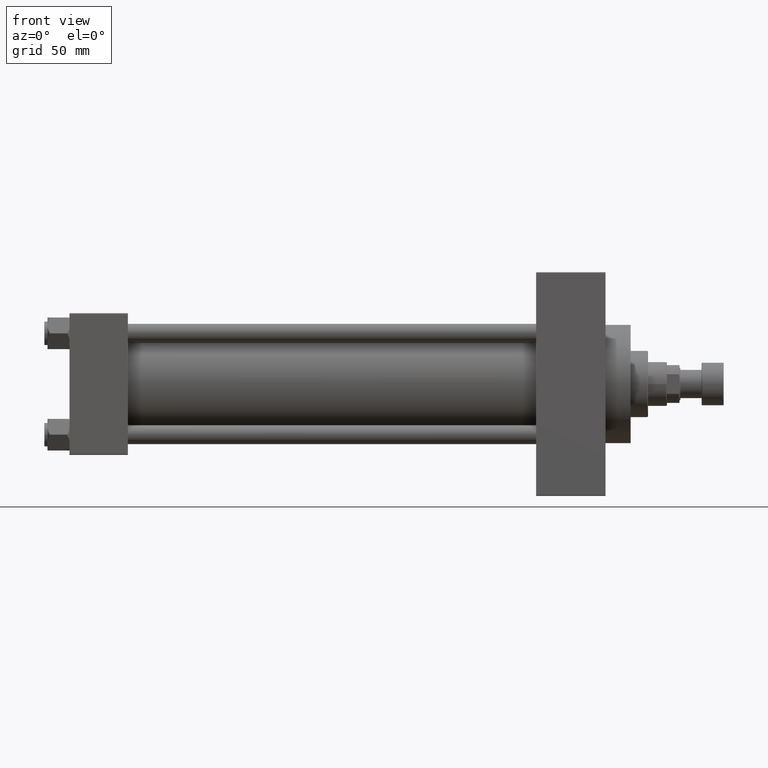
[diagram: clean part render]
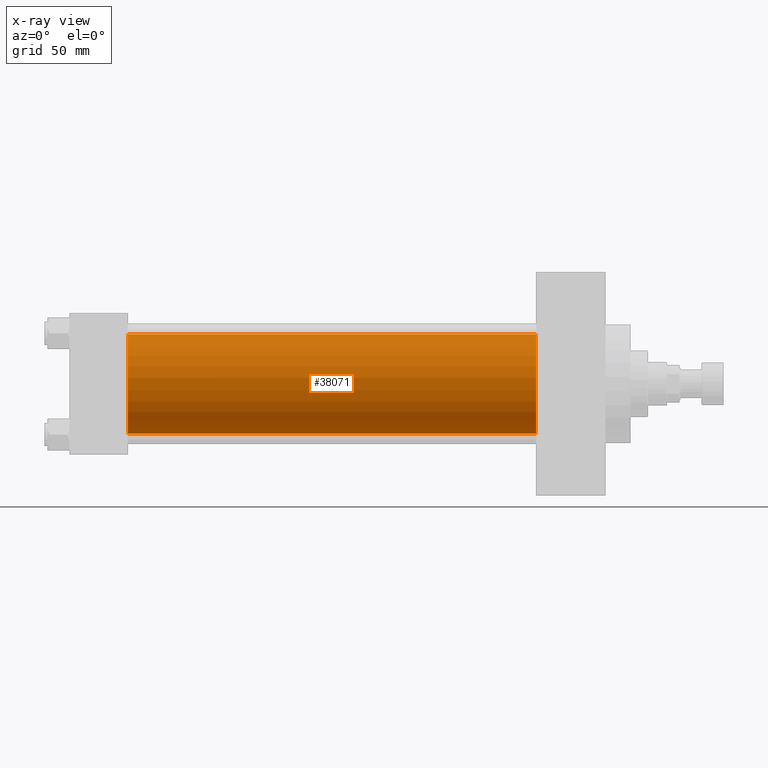
[diagram: x-ray — body ghosted, one internal face saturated and labeled with its STEP entity id]
A machine part, front view, then the same camera in x-ray: the body is ghosted and one INTERNAL B-rep face — a face not visible from any outside direction — is saturated and labeled: STEP entity #38071.
In plain terms, the highlighted cylindrical surface (partial cylindrical patch) has radius 31.5 mm, axis along (-1, -0, -0).
Its self-contained STEP definition (entity closure, byte-faithful):
#1463 = CARTESIAN_POINT ( 'NONE',  ( 296.0000000000000000, 1.255552203348951850E-15, -31.50000000000000000 ) ) ;
#1961 = VECTOR ( 'NONE', #23172, 1000.000000000000000 ) ;
#2981 = VERTEX_POINT ( 'NONE', #13525 ) ;
#7095 = CARTESIAN_POINT ( 'NONE',  ( 37.00000000000000000, -2.602085213965210642E-15, 31.50000000000000000 ) ) ;
#11041 = CARTESIAN_POINT ( 'NONE',  ( 37.00000000000000000, -2.602085213965210642E-15, 0.000000000000000000 ) ) ;
#13322 = EDGE_LOOP ( 'NONE', ( #21347, #30809, #45869, #23539 ) ) ;
#13525 = CARTESIAN_POINT ( 'NONE',  ( 37.00000000000000000, 1.255552203348951850E-15, -31.50000000000000000 ) ) ;
#15367 = LINE ( 'NONE', #37794, #1961 ) ;
#15522 = EDGE_CURVE ( 'NONE', #46396, #16324, #30454, .T. ) ;
#16120 = CARTESIAN_POINT ( 'NONE',  ( 296.0000000000000000, -2.602085213965210642E-15, 0.000000000000000000 ) ) ;
#16324 = VERTEX_POINT ( 'NONE', #27460 ) ;
#16372 = DIRECTION ( 'NONE',  ( 1.000000000000000000, 0.000000000000000000, 0.000000000000000000 ) ) ;
#20844 = LINE ( 'NONE', #1463, #29104 ) ;
#21347 = ORIENTED_EDGE ( 'NONE', *, *, #15522, .T. ) ;
#23172 = DIRECTION ( 'NONE',  ( -1.000000000000000000, -0.000000000000000000, -0.000000000000000000 ) ) ;
#23539 = ORIENTED_EDGE ( 'NONE', *, *, #41560, .F. ) ;
#27460 = CARTESIAN_POINT ( 'NONE',  ( 296.0000000000000000, 1.255552203348951850E-15, -31.50000000000000000 ) ) ;
#29104 = VECTOR ( 'NONE', #36216, 1000.000000000000000 ) ;
#30454 = CIRCLE ( 'NONE', #45687, 31.50000000000000000 ) ;
#30809 = ORIENTED_EDGE ( 'NONE', *, *, #33737, .T. ) ;
#32000 = FACE_OUTER_BOUND ( 'NONE', #13322, .T. ) ;
#33502 = EDGE_CURVE ( 'NONE', #36225, #2981, #39537, .T. ) ;
#33737 = EDGE_CURVE ( 'NONE', #16324, #2981, #20844, .T. ) ;
#36124 = CARTESIAN_POINT ( 'NONE',  ( 296.0000000000000000, -2.602085213965210642E-15, 31.50000000000000000 ) ) ;
#36216 = DIRECTION ( 'NONE',  ( -1.000000000000000000, -0.000000000000000000, -0.000000000000000000 ) ) ;
#36225 = VERTEX_POINT ( 'NONE', #7095 ) ;
#37115 = AXIS2_PLACEMENT_3D ( 'NONE', #11041, #37746, #38246 ) ;
#37746 = DIRECTION ( 'NONE',  ( 1.000000000000000000, 0.000000000000000000, 0.000000000000000000 ) ) ;
#37794 = CARTESIAN_POINT ( 'NONE',  ( 296.0000000000000000, -2.602085213965210642E-15, 31.50000000000000000 ) ) ;
#38071 = ADVANCED_FACE ( 'NONE', ( #32000 ), #46550, .F. ) ;
#38246 = DIRECTION ( 'NONE',  ( 0.000000000000000000, 0.000000000000000000, -1.000000000000000000 ) ) ;
#39537 = CIRCLE ( 'NONE', #37115, 31.50000000000000000 ) ;
#39780 = DIRECTION ( 'NONE',  ( 0.000000000000000000, 0.000000000000000000, 1.000000000000000000 ) ) ;
#40028 = DIRECTION ( 'NONE',  ( 0.000000000000000000, 0.000000000000000000, -1.000000000000000000 ) ) ;
#40535 = AXIS2_PLACEMENT_3D ( 'NONE', #16120, #43531, #39780 ) ;
#41560 = EDGE_CURVE ( 'NONE', #46396, #36225, #15367, .T. ) ;
#43044 = CARTESIAN_POINT ( 'NONE',  ( 296.0000000000000000, -2.602085213965210642E-15, 0.000000000000000000 ) ) ;
#43531 = DIRECTION ( 'NONE',  ( -1.000000000000000000, -0.000000000000000000, -0.000000000000000000 ) ) ;
#45687 = AXIS2_PLACEMENT_3D ( 'NONE', #43044, #16372, #40028 ) ;
#45869 = ORIENTED_EDGE ( 'NONE', *, *, #33502, .F. ) ;
#46396 = VERTEX_POINT ( 'NONE', #36124 ) ;
#46550 = CYLINDRICAL_SURFACE ( 'NONE', #40535, 31.50000000000000000 ) ;